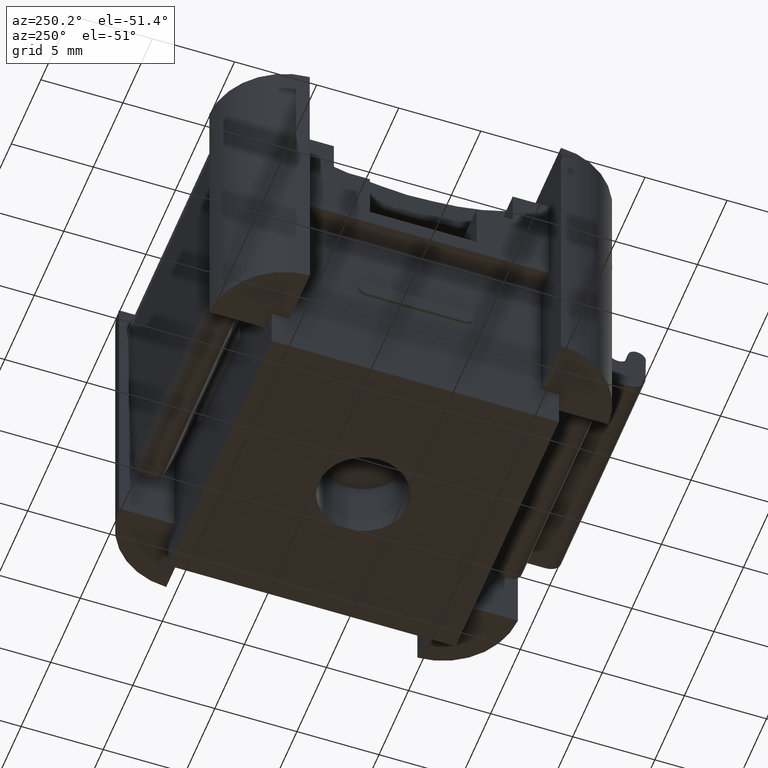
[diagram: clean part render]
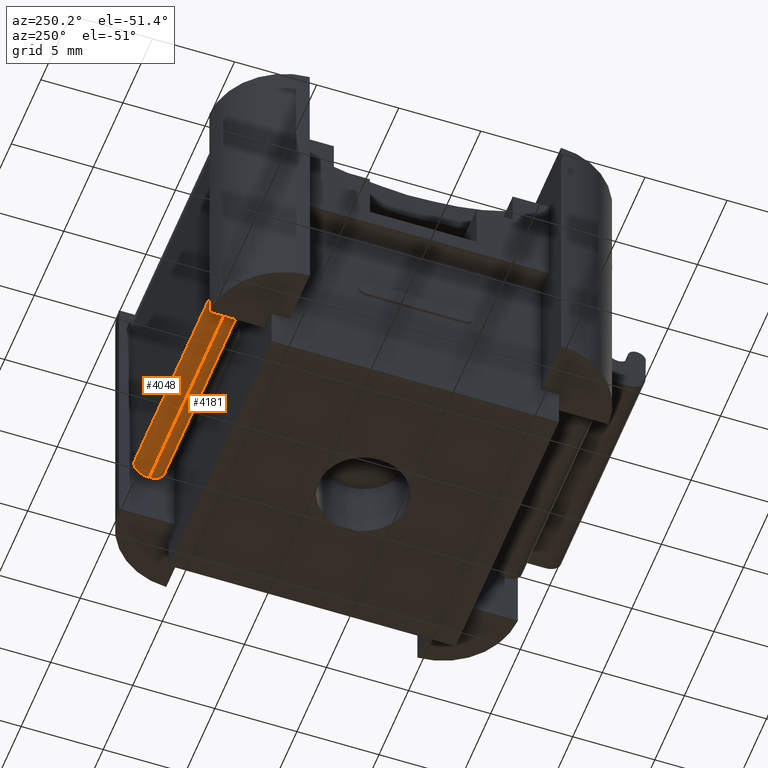
[diagram: same view with one multi-face feature highlighted, each face labeled with its STEP entity id]
A machine part, auxiliary view. The highlighted faces form ONE feature: a constant-radius fillet chain: 2 tangent blend faces with common blend radius 0.95 mm. The faces share edges in the B-rep.
Their STEP definitions:
[1] entity #4048 (Cylinder):
#201 = DIRECTION ( 'NONE',  ( 1.000000000000000000, 2.334185942430046700E-013, -1.378492127825591700E-018 ) ) ;
#227 = CARTESIAN_POINT ( 'NONE',  ( 0.1567730133742067100, 22.64805550988284500, 5.199873127569215800 ) ) ;
#241 = LINE ( 'NONE', #227, #1011 ) ;
#563 = VECTOR ( 'NONE', #2058, 1000.000000000000000 ) ;
#608 = CIRCLE ( 'NONE', #643, 0.9500000000000051700 ) ;
#643 = AXIS2_PLACEMENT_3D ( 'NONE', #2137, #2158, #2160 ) ;
#769 = AXIS2_PLACEMENT_3D ( 'NONE', #1234, #1205, #1235 ) ;
#841 = CIRCLE ( 'NONE', #872, 0.9500000000000055100 ) ;
#872 = AXIS2_PLACEMENT_3D ( 'NONE', #2748, #2752, #2767 ) ;
#1011 = VECTOR ( 'NONE', #201, 1000.000000000000000 ) ;
#1199 = FACE_OUTER_BOUND ( 'NONE', #3769, .T. ) ;
#1205 = DIRECTION ( 'NONE',  ( 1.000000000000000000, 2.334185942430046700E-013, -1.378492127825591700E-018 ) ) ;
#1233 = CYLINDRICAL_SURFACE ( 'NONE', #769, 0.9500000000000055100 ) ;
#1234 = CARTESIAN_POINT ( 'NONE',  ( 0.1567730133742067100, 22.64805550988284500, 6.149873127569221300 ) ) ;
#1235 = DIRECTION ( 'NONE',  ( 0.0000000000000000000, 0.0000000000000000000, -1.000000000000000000 ) ) ;
#1901 = CARTESIAN_POINT ( 'NONE',  ( 14.85677301337397400, 23.59805550988628700, 6.149873127568804800 ) ) ;
#1954 = CARTESIAN_POINT ( 'NONE',  ( 0.6567730133739789800, 23.59805550988296100, 6.149873127568806600 ) ) ;
#2050 = LINE ( 'NONE', #2051, #563 ) ;
#2051 = CARTESIAN_POINT ( 'NONE',  ( 0.1567730133739783900, 23.59805550988285100, 6.149873127568806600 ) ) ;
#2058 = DIRECTION ( 'NONE',  ( 1.000000000000000000, 2.334185942430046700E-013, -1.378492127825591700E-018 ) ) ;
#2137 = CARTESIAN_POINT ( 'NONE',  ( 0.6567730133742003500, 22.64805550988296200, 6.149873127569221300 ) ) ;
#2158 = DIRECTION ( 'NONE',  ( -1.000000000000000000, -2.334185942430046700E-013, 1.378492127825591700E-018 ) ) ;
#2160 = DIRECTION ( 'NONE',  ( 7.304098846218095000E-015, -0.03122598607869535700, 0.9995123499954430300 ) ) ;
#2570 = ORIENTED_EDGE ( 'NONE', *, *, #3891, .F. ) ;
#2748 = CARTESIAN_POINT ( 'NONE',  ( 14.85677301337419800, 22.64805550988628000, 6.149873127569219600 ) ) ;
#2752 = DIRECTION ( 'NONE',  ( -1.000000000000000000, -2.334185942430046700E-013, 1.378492127825591700E-018 ) ) ;
#2767 = DIRECTION ( 'NONE',  ( 0.0000000000000000000, 0.0000000000000000000, 1.000000000000000000 ) ) ;
#2874 = CARTESIAN_POINT ( 'NONE',  ( 0.6567730133742003500, 22.64805550988462100, 5.199873127569215800 ) ) ;
#3129 = CARTESIAN_POINT ( 'NONE',  ( 14.85677301337419800, 22.64805550988462100, 5.199873127569214000 ) ) ;
#3147 = ORIENTED_EDGE ( 'NONE', *, *, #4151, .T. ) ;
#3185 = ORIENTED_EDGE ( 'NONE', *, *, #4247, .F. ) ;
#3243 = ORIENTED_EDGE ( 'NONE', *, *, #3866, .T. ) ;
#3458 = VERTEX_POINT ( 'NONE', #3129 ) ;
#3463 = VERTEX_POINT ( 'NONE', #2874 ) ;
#3624 = VERTEX_POINT ( 'NONE', #1901 ) ;
#3711 = VERTEX_POINT ( 'NONE', #1954 ) ;
#3769 = EDGE_LOOP ( 'NONE', ( #3185, #2570, #3243, #3147 ) ) ;
#3866 = EDGE_CURVE ( 'NONE', #3711, #3624, #2050, .T. ) ;
#3891 = EDGE_CURVE ( 'NONE', #3711, #3463, #608, .T. ) ;
#4048 = ADVANCED_FACE ( 'NONE', ( #1199 ), #1233, .T. ) ;
#4151 = EDGE_CURVE ( 'NONE', #3624, #3458, #841, .T. ) ;
#4247 = EDGE_CURVE ( 'NONE', #3463, #3458, #241, .T. ) ;
[2] entity #4181 (Cylinder):
#181 = DIRECTION ( 'NONE',  ( -1.000000000000000000, -2.334185942430046700E-013, 1.378492127825591700E-018 ) ) ;
#182 = DIRECTION ( 'NONE',  ( 7.304098846218095000E-015, -0.03122598607869535700, 0.9995123499954430300 ) ) ;
#185 = CARTESIAN_POINT ( 'NONE',  ( 0.6567730133742003500, 22.64805550988296200, 6.149873127569221300 ) ) ;
#201 = DIRECTION ( 'NONE',  ( 1.000000000000000000, 2.334185942430046700E-013, -1.378492127825591700E-018 ) ) ;
#227 = CARTESIAN_POINT ( 'NONE',  ( 0.1567730133742067100, 22.64805550988284500, 5.199873127569215800 ) ) ;
#241 = LINE ( 'NONE', #227, #1011 ) ;
#248 = LINE ( 'NONE', #281, #994 ) ;
#273 = DIRECTION ( 'NONE',  ( -1.000000000000000000, -2.334185942430046700E-013, 1.378492127825591700E-018 ) ) ;
#275 = DIRECTION ( 'NONE',  ( 1.000000000000000000, 2.334185942430046700E-013, -1.378492127825591700E-018 ) ) ;
#281 = CARTESIAN_POINT ( 'NONE',  ( 0.1567730133744073000, 21.74583982733358000, 5.852372098726995400 ) ) ;
#283 = DIRECTION ( 'NONE',  ( 0.0000000000000000000, 0.0000000000000000000, 1.000000000000000000 ) ) ;
#286 = CARTESIAN_POINT ( 'NONE',  ( 14.85677301337419800, 22.64805550988628000, 6.149873127569219600 ) ) ;
#445 = DIRECTION ( 'NONE',  ( 1.000000000000000000, 2.334185942430046700E-013, -1.378492127825591700E-018 ) ) ;
#453 = DIRECTION ( 'NONE',  ( 0.0000000000000000000, 0.0000000000000000000, -1.000000000000000000 ) ) ;
#456 = FACE_OUTER_BOUND ( 'NONE', #3701, .T. ) ;
#457 = CYLINDRICAL_SURFACE ( 'NONE', #904, 0.9500000000000055100 ) ;
#459 = CARTESIAN_POINT ( 'NONE',  ( 0.1567730133742067100, 22.64805550988284500, 6.149873127569221300 ) ) ;
#904 = AXIS2_PLACEMENT_3D ( 'NONE', #459, #445, #453 ) ;
#962 = AXIS2_PLACEMENT_3D ( 'NONE', #185, #181, #182 ) ;
#974 = AXIS2_PLACEMENT_3D ( 'NONE', #286, #273, #283 ) ;
#981 = CIRCLE ( 'NONE', #962, 0.9500000000000051700 ) ;
#994 = VECTOR ( 'NONE', #275, 1000.000000000000000 ) ;
#1006 = CIRCLE ( 'NONE', #974, 0.9500000000000055100 ) ;
#1011 = VECTOR ( 'NONE', #201, 1000.000000000000000 ) ;
#1796 = CARTESIAN_POINT ( 'NONE',  ( 14.85677301337441000, 21.74583982733700800, 5.852372098726995400 ) ) ;
#2585 = ORIENTED_EDGE ( 'NONE', *, *, #4247, .T. ) ;
#2588 = ORIENTED_EDGE ( 'NONE', *, *, #4234, .F. ) ;
#2592 = ORIENTED_EDGE ( 'NONE', *, *, #4265, .F. ) ;
#2597 = ORIENTED_EDGE ( 'NONE', *, *, #4254, .T. ) ;
#2787 = CARTESIAN_POINT ( 'NONE',  ( 0.6567730133744076300, 21.74583982733369700, 5.852372098726995400 ) ) ;
#2874 = CARTESIAN_POINT ( 'NONE',  ( 0.6567730133742003500, 22.64805550988462100, 5.199873127569215800 ) ) ;
#3129 = CARTESIAN_POINT ( 'NONE',  ( 14.85677301337419800, 22.64805550988462100, 5.199873127569214000 ) ) ;
#3458 = VERTEX_POINT ( 'NONE', #3129 ) ;
#3462 = VERTEX_POINT ( 'NONE', #2787 ) ;
#3463 = VERTEX_POINT ( 'NONE', #2874 ) ;
#3489 = VERTEX_POINT ( 'NONE', #1796 ) ;
#3701 = EDGE_LOOP ( 'NONE', ( #2588, #2585, #2597, #2592 ) ) ;
#4181 = ADVANCED_FACE ( 'NONE', ( #456 ), #457, .T. ) ;
#4234 = EDGE_CURVE ( 'NONE', #3463, #3462, #981, .T. ) ;
#4247 = EDGE_CURVE ( 'NONE', #3463, #3458, #241, .T. ) ;
#4254 = EDGE_CURVE ( 'NONE', #3458, #3489, #1006, .T. ) ;
#4265 = EDGE_CURVE ( 'NONE', #3462, #3489, #248, .T. ) ;